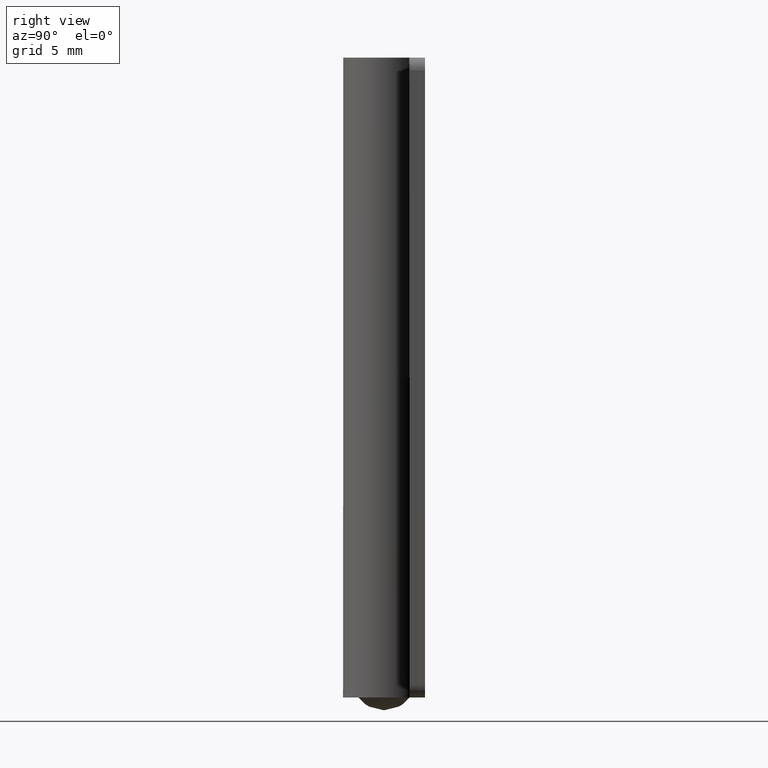
[diagram: clean part render]
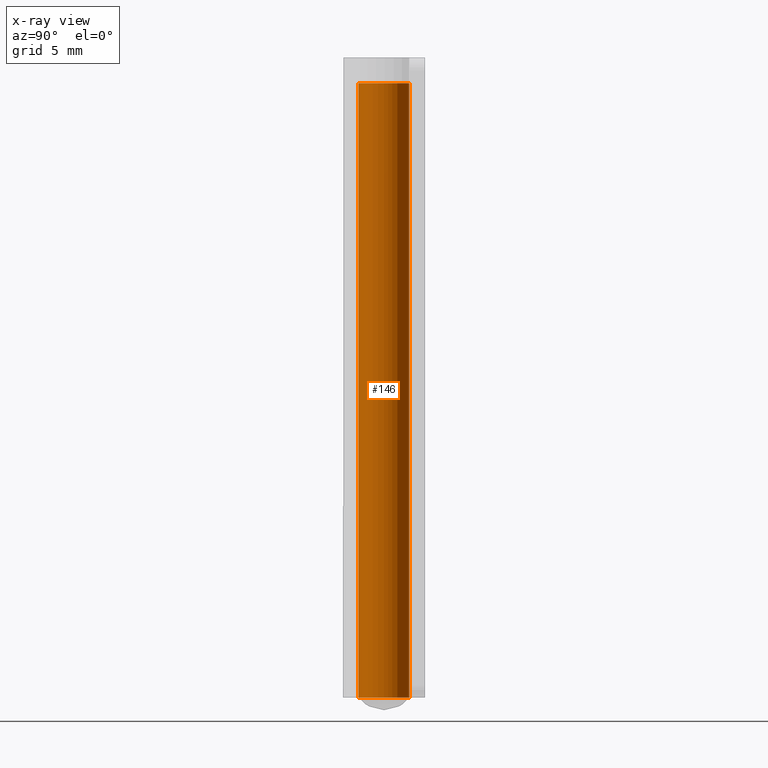
[diagram: x-ray — body ghosted, one internal face saturated and labeled with its STEP entity id]
A machine part, right view, then the same camera in x-ray: the body is ghosted and one INTERNAL B-rep face — a face not visible from any outside direction — is saturated and labeled: STEP entity #146.
In plain terms, the highlighted face is a freeform B-spline surface patch.
Its self-contained STEP definition (entity closure, byte-faithful):
#44=CARTESIAN_POINT('',(-0.236068471309258,1.986019069517292,49.199999976328606));
#45=CARTESIAN_POINT('',(-0.179229458791175,1.992775247744287,49.199999976328598));
#46=CARTESIAN_POINT('',(-0.122097080101932,1.996269613720351,49.199999976328598));
#47=CARTESIAN_POINT('',(1.874172533618419,2.118366693822284,49.199999976328613));
#48=CARTESIAN_POINT('',(1.996269613720351,0.122097080101932,49.199999976328598));
#49=CARTESIAN_POINT('',(2.118366693822284,-1.874172533618419,49.199999976328613));
#50=CARTESIAN_POINT('',(0.122097080101932,-1.996269613720351,49.199999976328598));
#51=CARTESIAN_POINT('',(-0.236068471309258,1.986019069517292,-1.229999976300406));
#52=CARTESIAN_POINT('',(-0.179229458791175,1.992775247744287,-1.229999976300405));
#53=CARTESIAN_POINT('',(-0.122097080101932,1.996269613720351,-1.229999976300405));
#54=CARTESIAN_POINT('',(1.874172533618419,2.118366693822284,-1.229999976300405));
#55=CARTESIAN_POINT('',(1.996269613720351,0.122097080101932,-1.229999976300405));
#56=CARTESIAN_POINT('',(2.118366693822284,-1.874172533618419,-1.229999976300405));
#57=CARTESIAN_POINT('',(0.122097080101932,-1.996269613720351,-1.229999976300405));
#65=(BOUNDED_SURFACE()B_SPLINE_SURFACE(2,1,((#44,#51),(#45,#52),(#46,#53),(#47,#54),(#48,#55),(#49,#56),(#50,#57)),.UNSPECIFIED.,.F.,.F.,.U.)B_SPLINE_SURFACE_WITH_KNOTS((3,2,2,3),(2,2),(0.0,0.132548341079965,3.446256868079073,6.759965395078182),(0.0,50.429999952629018),.UNSPECIFIED.)GEOMETRIC_REPRESENTATION_ITEM()RATIONAL_B_SPLINE_SURFACE(((0.977505800795127,0.977505800795127),(0.988284271247462,0.988284271247462),(1.0,1.0),(0.707106781186548,0.707106781186548),(1.0,1.0),(0.707106781186548,0.707106781186548),(1.0,1.0)))REPRESENTATION_ITEM('')SURFACE());
#66=CARTESIAN_POINT('',(-0.236068471325678,1.986019069515340,47.999999977455801));
#67=VERTEX_POINT('',#66);
#68=CARTESIAN_POINT('',(2.000000016908155,0.0,47.999999977455801));
#69=VERTEX_POINT('',#68);
#70=CARTESIAN_POINT('',(-0.236068471325679,1.986019069515340,47.999999977455801));
#71=CARTESIAN_POINT('',(-0.118448240321785,2.000000016908155,47.999999977455801));
#72=CARTESIAN_POINT('',(0.0,2.000000016908155,47.999999977455801));
#73=CARTESIAN_POINT('',(2.000000016908155,2.000000016908155,47.999999977455786));
#74=CARTESIAN_POINT('',(2.000000016908155,0.0,47.999999977455801));
#82=(BOUNDED_CURVE()B_SPLINE_CURVE(2,(#70,#71,#72,#73,#74),.UNSPECIFIED.,.F.,.U.)B_SPLINE_CURVE_WITH_KNOTS((3,2,3),(0.229562473512850,0.250000000000000,0.500000000000000),.UNSPECIFIED.)CURVE()GEOMETRIC_REPRESENTATION_ITEM()RATIONAL_B_SPLINE_CURVE((0.956026754182408,0.976055948330373,1.0,0.707106781186548,1.0))REPRESENTATION_ITEM(''));
#83=EDGE_CURVE('',#67,#69,#82,.T.);
#84=ORIENTED_EDGE('',*,*,#83,.T.);
#85=CARTESIAN_POINT('',(0.122097080164815,-1.996269613716506,47.999999977455801));
#86=VERTEX_POINT('',#85);
#87=CARTESIAN_POINT('',(2.000000016908155,0.0,47.999999977455801));
#88=CARTESIAN_POINT('',(2.000000016908155,-1.881412149598245,47.999999977455793));
#89=CARTESIAN_POINT('',(0.122097080164815,-1.996269613716506,47.999999977455801));
#97=(BOUNDED_CURVE()B_SPLINE_CURVE(2,(#87,#88,#89),.UNSPECIFIED.,.F.,.U.)B_SPLINE_CURVE_WITH_KNOTS((3,3),(0.500000000000000,0.739332962231098),.UNSPECIFIED.)CURVE()GEOMETRIC_REPRESENTATION_ITEM()RATIONAL_B_SPLINE_CURVE((1.0,0.719603993295901,0.976072041649905))REPRESENTATION_ITEM(''));
#98=EDGE_CURVE('',#69,#86,#97,.T.);
#99=ORIENTED_EDGE('',*,*,#98,.T.);
#100=CARTESIAN_POINT('',(0.122097080164815,-1.996269613716506,0.000000022544206));
#101=VERTEX_POINT('',#100);
#102=CARTESIAN_POINT('',(0.122097080164815,-1.996269613716506,47.999999977455801));
#103=CARTESIAN_POINT('',(0.122097080164815,-1.996269613716506,0.000000022544206));
#104=QUASI_UNIFORM_CURVE('',1,(#102,#103),.UNSPECIFIED.,.F.,.U.);
#105=EDGE_CURVE('',#86,#101,#104,.T.);
#106=ORIENTED_EDGE('',*,*,#105,.T.);
#107=CARTESIAN_POINT('',(2.000000016908155,0.0,0.000000022544206));
#108=VERTEX_POINT('',#107);
#109=CARTESIAN_POINT('',(2.000000016908155,0.0,0.000000022544206));
#110=CARTESIAN_POINT('',(2.000000016908155,-1.881412149598245,0.000000022544206));
#111=CARTESIAN_POINT('',(0.122097080164815,-1.996269613716506,0.000000022544206));
#119=(BOUNDED_CURVE()B_SPLINE_CURVE(2,(#109,#110,#111),.UNSPECIFIED.,.F.,.U.)B_SPLINE_CURVE_WITH_KNOTS((3,3),(0.500000000000000,0.739332962231098),.UNSPECIFIED.)CURVE()GEOMETRIC_REPRESENTATION_ITEM()RATIONAL_B_SPLINE_CURVE((1.0,0.719603993295901,0.976072041649905))REPRESENTATION_ITEM(''));
#120=EDGE_CURVE('',#108,#101,#119,.T.);
#121=ORIENTED_EDGE('',*,*,#120,.F.);
#122=CARTESIAN_POINT('',(-0.236068471325678,1.986019069515340,0.000000022544206));
#123=VERTEX_POINT('',#122);
#124=CARTESIAN_POINT('',(-0.236068471325678,1.986019069515340,0.000000022544206));
#125=CARTESIAN_POINT('',(-0.118448240321785,2.000000016908155,0.000000022544206));
#126=CARTESIAN_POINT('',(0.0,2.000000016908155,0.000000022544206));
#127=CARTESIAN_POINT('',(2.000000016908155,2.000000016908155,0.000000022544206));
#128=CARTESIAN_POINT('',(2.000000016908155,0.0,0.000000022544206));
#136=(BOUNDED_CURVE()B_SPLINE_CURVE(2,(#124,#125,#126,#127,#128),.UNSPECIFIED.,.F.,.U.)B_SPLINE_CURVE_WITH_KNOTS((3,2,3),(0.229562473512850,0.250000000000000,0.500000000000000),.UNSPECIFIED.)CURVE()GEOMETRIC_REPRESENTATION_ITEM()RATIONAL_B_SPLINE_CURVE((0.956026754182408,0.976055948330373,1.0,0.707106781186548,1.0))REPRESENTATION_ITEM(''));
#137=EDGE_CURVE('',#123,#108,#136,.T.);
#138=ORIENTED_EDGE('',*,*,#137,.F.);
#139=CARTESIAN_POINT('',(-0.236068471325678,1.986019069515340,47.999999977455801));
#140=CARTESIAN_POINT('',(-0.236068471325678,1.986019069515340,0.000000022544206));
#141=QUASI_UNIFORM_CURVE('',1,(#139,#140),.UNSPECIFIED.,.F.,.U.);
#142=EDGE_CURVE('',#67,#123,#141,.T.);
#143=ORIENTED_EDGE('',*,*,#142,.F.);
#144=EDGE_LOOP('',(#84,#99,#106,#121,#138,#143));
#145=FACE_OUTER_BOUND('',#144,.T.);
#146=ADVANCED_FACE('',(#145),#65,.T.);